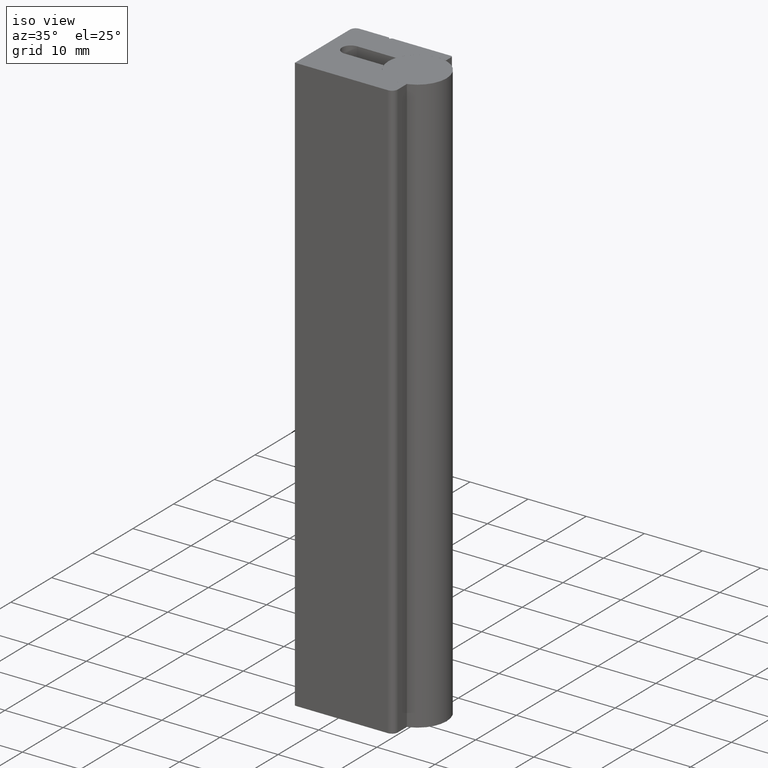
[diagram: clean part render]
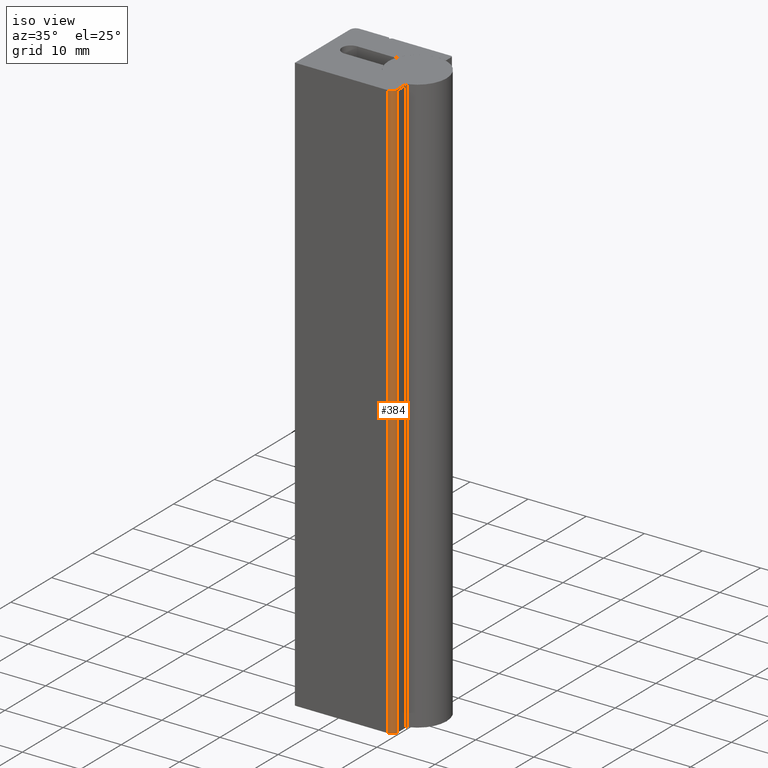
[diagram: same view with one face highlighted and labeled with its STEP entity id]
A machine part, iso view. The second image highlights one B-rep face of the part: STEP entity #384.
In plain terms, the highlighted cylindrical surface (edge-blend (fillet) strip) has radius 1 mm, axis along (0, 0, 1).
Its self-contained STEP definition (entity closure, byte-faithful):
#41=CIRCLE('',#464,1.);
#42=CIRCLE('',#465,1.);
#50=CYLINDRICAL_SURFACE('',#463,1.);
#67=FACE_OUTER_BOUND('',#88,.T.);
#88=EDGE_LOOP('',(#313,#314,#315,#316));
#95=LINE('',#603,#132);
#129=LINE('',#690,#166);
#132=VECTOR('',#484,10.);
#166=VECTOR('',#566,10.);
#169=VERTEX_POINT('',#600);
#170=VERTEX_POINT('',#602);
#198=VERTEX_POINT('',#686);
#199=VERTEX_POINT('',#688);
#203=EDGE_CURVE('',#169,#170,#95,.T.);
#247=EDGE_CURVE('',#198,#199,#129,.T.);
#248=EDGE_CURVE('',#169,#198,#41,.T.);
#249=EDGE_CURVE('',#170,#199,#42,.T.);
#313=ORIENTED_EDGE('',*,*,#248,.T.);
#314=ORIENTED_EDGE('',*,*,#247,.T.);
#315=ORIENTED_EDGE('',*,*,#249,.F.);
#316=ORIENTED_EDGE('',*,*,#203,.F.);
#384=ADVANCED_FACE('',(#67),#50,.T.);
#463=AXIS2_PLACEMENT_3D('',#691,#567,#568);
#464=AXIS2_PLACEMENT_3D('',#692,#569,#570);
#465=AXIS2_PLACEMENT_3D('',#693,#571,#572);
#484=DIRECTION('',(0.,0.,1.));
#566=DIRECTION('',(0.,0.,1.));
#567=DIRECTION('center_axis',(0.,0.,1.));
#568=DIRECTION('ref_axis',(0.,-1.,0.));
#569=DIRECTION('center_axis',(0.,0.,1.));
#570=DIRECTION('ref_axis',(0.,-1.,0.));
#571=DIRECTION('center_axis',(0.,0.,1.));
#572=DIRECTION('ref_axis',(0.,-1.,0.));
#600=CARTESIAN_POINT('',(0.500000000000001,-8.00000000000038,0.));
#602=CARTESIAN_POINT('',(0.500000000000001,-8.00000000000038,100.));
#603=CARTESIAN_POINT('',(0.500000000000001,-8.00000000000038,0.));
#686=CARTESIAN_POINT('',(1.5,-7.00000000000038,0.));
#688=CARTESIAN_POINT('',(1.5,-7.00000000000038,100.));
#690=CARTESIAN_POINT('',(1.5,-7.00000000000038,0.));
#691=CARTESIAN_POINT('Origin',(0.500000000000001,-7.00000000000038,0.));
#692=CARTESIAN_POINT('Origin',(0.500000000000001,-7.00000000000038,0.));
#693=CARTESIAN_POINT('Origin',(0.500000000000001,-7.00000000000038,100.));